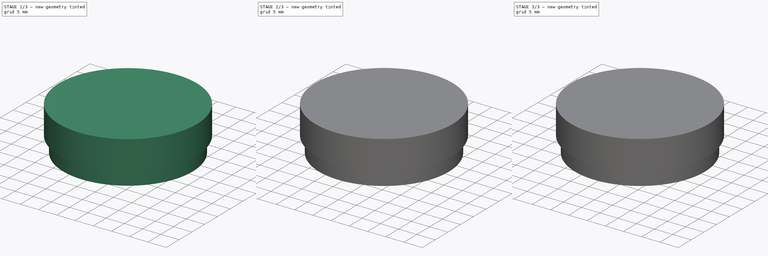
[diagram: build sequence overview — one tinted view per stage of 3, left to right]
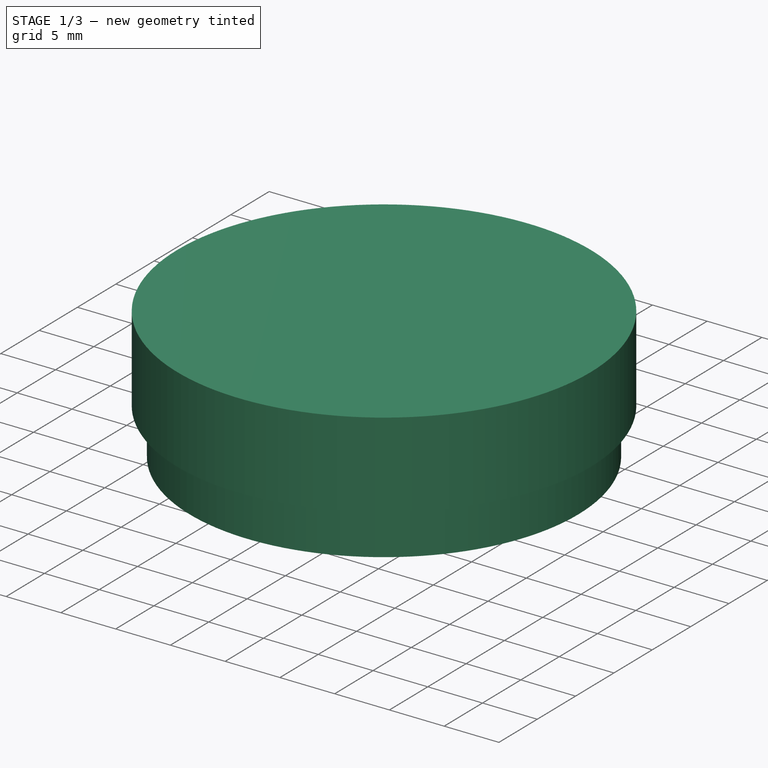
[diagram: stage 1 of 3 — iso view after this stage's code; geometry added in this stage tinted green]
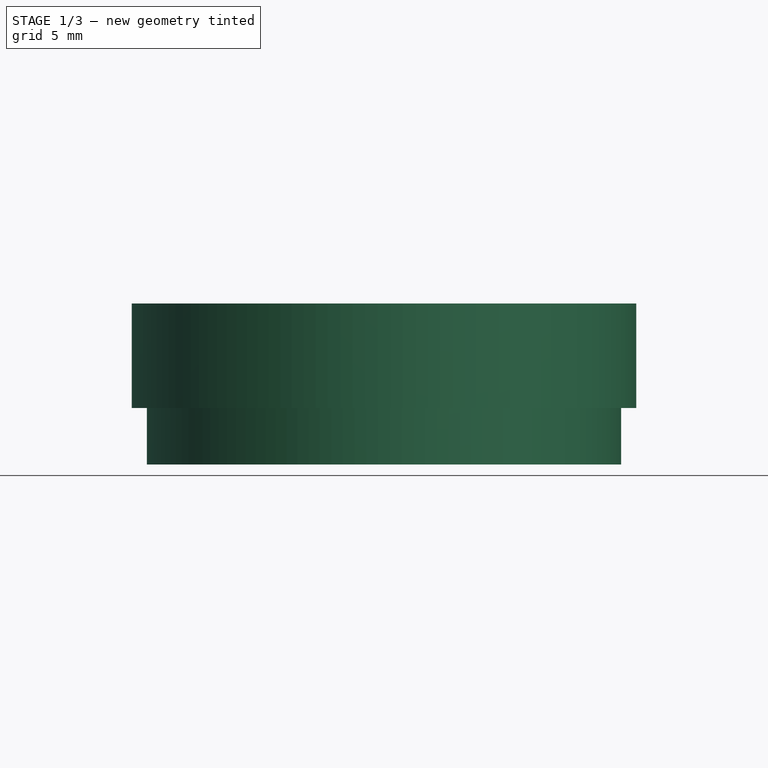
[diagram: stage 1 of 3 — front view after this stage's code; geometry added in this stage tinted green]
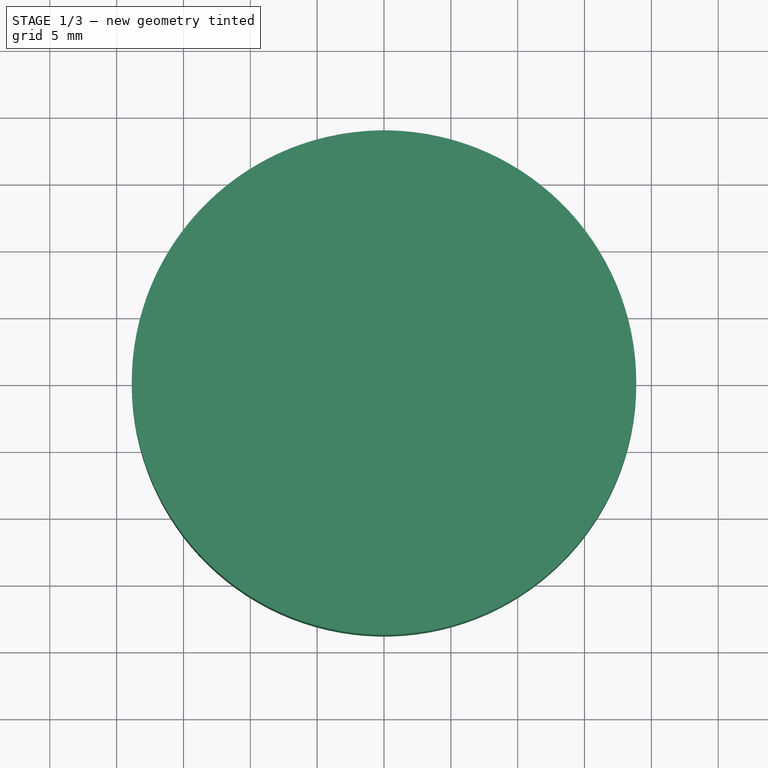
[diagram: stage 1 of 3 — top view after this stage's code; geometry added in this stage tinted green]
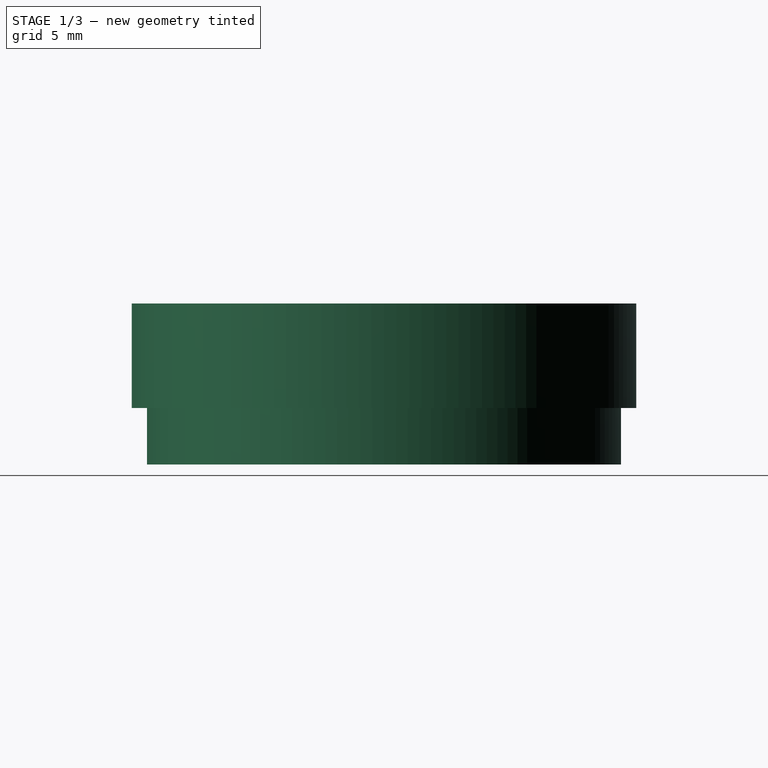
[diagram: stage 1 of 3 — right view after this stage's code; geometry added in this stage tinted green]
FCSTD DOCUMENT  (FreeCAD 0.20R27422 (Git))
Label: Petri dishs
License: All rights reserved
LicenseURL: http://en.wikipedia.org/wiki/All_rights_reserved
objects: TechDraw::DrawViewPart×5, Part::Cylinder×3, Sketcher::SketchObject×3, PartDesign::Revolution×3, PartDesign::Body×3, Part::Cut×2, TechDraw::DrawSVGTemplate×1, TechDraw::DrawPage×1
note: 17 computed .brp shape members not serialized (recipe doc carries the construction recipe); baked Part::Feature solids carry a one-line shape summary decoded from their .brp

FEATURE [Part::Cylinder] Cylinder
  Angle = 360
  AttacherType = Attacher::AttachEngine3D
  FirstAngle = 0
  Height = 9.65
  Placement = pos=(0,0,-0.2) rot=(0,0,1;0rad)
  Radius = 17.5
  SecondAngle = 0
FEATURE [PartDesign::Body] Body  label="Dish lid"
  Group = -> [Sketch,Revolution]
  Origin = -> Origin
  Tip = -> Revolution
FEATURE [TechDraw::DrawSVGTemplate] Template
  Height = 297
  Orientation = 0
  Width = 210
FEATURE [TechDraw::DrawViewPart] View
  CoarseView = false
  Direction = (0.577,-0.577,0.577)
  Focus = 100
  HardHidden = false
  IsoCount = 0
  IsoHidden = false
  IsoVisible = false
  LockPosition = false
  Perspective = false
  Rotation = 0
  ScaleType = 0
  SeamHidden = false
  SeamVisible = true
  SmoothHidden = false
  SmoothVisible = true
  Source = -> [Body]
  X = 35.6888
  XDirection = (0.707,0.707,0)
  Y = 226.182
FEATURE [Sketcher::SketchObject] Sketch001
  FullyConstrained = false
  MapMode = 5
  Placement = pos=(0,0,0) rot=(1,0,0;1.5708rad)
  Support = -> [XZ_Plane001]
  sketch-geometry (6):
    g0: LineSegment StartX=0 StartY=11.1401 StartZ=0 EndX=18.8729 EndY=11.1401 EndZ=0
    g1: LineSegment StartX=18.8729 StartY=11.1401 StartZ=0 EndX=18.8729 EndY=3.32522 EndZ=0
    g2: LineSegment StartX=18.8729 StartY=3.32521 StartZ=0 EndX=18.1729 EndY=3.32521 EndZ=0
    g3: LineSegment StartX=18.1729 StartY=3.32521 StartZ=0 EndX=18.1729 EndY=10.4401 EndZ=0
    g4: LineSegment StartX=18.1729 StartY=10.4401 StartZ=0 EndX=0 EndY=10.4401 EndZ=0
    g5: LineSegment StartX=0 StartY=10.4401 StartZ=0 EndX=0 EndY=11.1401 EndZ=0
  constraints (15):
    c: PointOnObject(g0,g-2)
    c: Horizontal(g0)
    c: Coincident(g1,g0)
    c: Coincident(g2,g1)
    c: Coincident(g3,g2)
    c: Coincident(g4,g3)
    c: PointOnObject(g4,g-2)
    c: Horizontal(g4)
    c: Coincident(g5,g4)
    c: Coincident(g5,g0)
    c: Vertical(g3)
    c: Vertical(g1)
    c: Horizontal(g2)
    c: DistanceX(g2,g2) = 0.7
    c: DistanceY(g5,g5) = 0.7
FEATURE [PartDesign::Revolution] Revolution001
  Angle = 360
  Axis = (0,2e-16,1)
  Base = (0,0,0)
  Placement = pos=(0,0,0) rot=(1,0,0;1.5708rad)
  Profile = -> Sketch001
  ReferenceAxis = -> Sketch001 [V_Axis]
  Reversed = true
FEATURE [PartDesign::Body] Body001  label="Dish lid001"
  Group = -> [Sketch001,Revolution001]
  Origin = -> Origin001
  Placement = pos=(0,0,0) rot=(0,1,0;3.14159rad)
  Tip = -> Revolution001
FEATURE [TechDraw::DrawViewPart] View001
  CoarseView = false
  Direction = (0,0,1)
  Focus = 100
  HardHidden = false
  IsoCount = 0
  IsoHidden = false
  IsoVisible = false
  LockPosition = false
  Perspective = false
  Rotation = 0
  ScaleType = 0
  SeamHidden = false
  SeamVisible = true
  SmoothHidden = false
  SmoothVisible = true
  Source = -> [Cut003]
  X = 89.5975
  XDirection = (0,1,0)
  Y = 166.916
FEATURE [TechDraw::DrawViewPart] View002
  CoarseView = false
  Direction = (-0.577,-0.577,0.577)
  Focus = 100
  HardHidden = false
  IsoCount = 0
  IsoHidden = false
  IsoVisible = false
  LockPosition = false
  Perspective = false
  Rotation = 0
  ScaleType = 0
  SeamHidden = false
  SeamVisible = true
  SmoothHidden = false
  SmoothVisible = true
  Source = -> [Cut003]
  X = 36.0237
  XDirection = (0.707,-0.707,0)
  Y = 169.93
FEATURE [TechDraw::DrawViewPart] View003
  CoarseView = false
  Direction = (-0.577,-0.577,0.577)
  Focus = 100
  HardHidden = false
  IsoCount = 0
  IsoHidden = false
  IsoVisible = false
  LockPosition = false
  Perspective = false
  Rotation = 0
  ScaleType = 0
  SeamHidden = false
  SeamVisible = true
  SmoothHidden = false
  SmoothVisible = true
  Source = -> [Body001]
  X = 89.5975
  XDirection = (0.707,-0.707,0)
  Y = 225.512
FEATURE [Sketcher::SketchObject] Sketch002
  FullyConstrained = false
  MapMode = 5
  Placement = pos=(0,0,0) rot=(1,0,0;1.5708rad)
  Support = -> [XZ_Plane002]
  sketch-geometry (6):
    g0: LineSegment StartX=0 StartY=-0.908115 StartZ=0 EndX=17.7355 EndY=-0.908115 EndZ=0
    g1: LineSegment StartX=17.7355 StartY=-0.908115 StartZ=0 EndX=17.7355 EndY=9.88416 EndZ=0
    g2: LineSegment StartX=17.7355 StartY=9.88416 StartZ=0 EndX=17.1355 EndY=9.88416 EndZ=0
    g3: LineSegment StartX=17.1355 StartY=9.88416 StartZ=0 EndX=17.1355 EndY=0.462332 EndZ=0
    g4: LineSegment StartX=17.1355 StartY=0.462332 StartZ=0 EndX=0 EndY=0.462332 EndZ=0
    g5: LineSegment StartX=0 StartY=-0.908115 StartZ=0 EndX=0 EndY=0.462332 EndZ=0
  constraints (14):
    c: PointOnObject(g0,g-2)
    c: Horizontal(g0)
    c: Coincident(g1,g0)
    c: Vertical(g1)
    c: Coincident(g2,g1)
    c: Coincident(g3,g2)
    c: Vertical(g3)
    c: Coincident(g4,g3)
    c: PointOnObject(g4,g-2)
    c: Horizontal(g4)
    c: Coincident(g5,g0)
    c: Coincident(g5,g4)
    c: Horizontal(g2)
    c: DistanceX(g2,g2) = 0.6
FEATURE [PartDesign::Revolution] Revolution002
  Angle = 360
  Axis = (0,2e-16,1)
  Base = (0,0,0)
  Placement = pos=(0,0,0) rot=(1,0,0;1.5708rad)
  Profile = -> Sketch002
  ReferenceAxis = -> Sketch002 [V_Axis]
  Reversed = true
FEATURE [PartDesign::Body] Body002  label="Dish 35 mm"
  Group = -> [Sketch002,Revolution002]
  Origin = -> Origin002
  Tip = -> Revolution002
FEATURE [TechDraw::DrawViewPart] View004
  CoarseView = false
  Direction = (0.577,-0.577,0.577)
  Focus = 100
  HardHidden = false
  IsoCount = 0
  IsoHidden = false
  IsoVisible = false
  LockPosition = false
  Perspective = false
  Rotation = 0
  ScaleType = 0
  SeamHidden = false
  SeamVisible = true
  SmoothHidden = false
  SmoothVisible = true
  Source = -> [Body002]
  X = 37.0282
  XDirection = (0.707,0.707,0)
  Y = 118.365
FEATURE [TechDraw::DrawPage] Page
  KeepUpdated = true
  NextBalloonIndex = 1
  ProjectionType = 0
  Template = -> Template
  Views = -> [View,View001,View002,View003,View004]
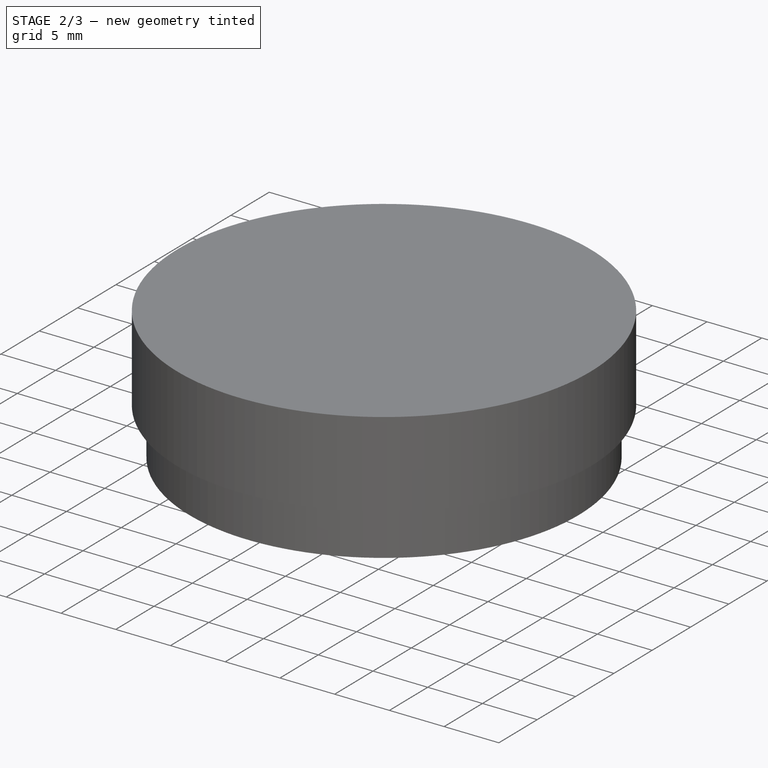
[diagram: stage 2 of 3 — iso view after this stage's code; geometry added in this stage tinted green]
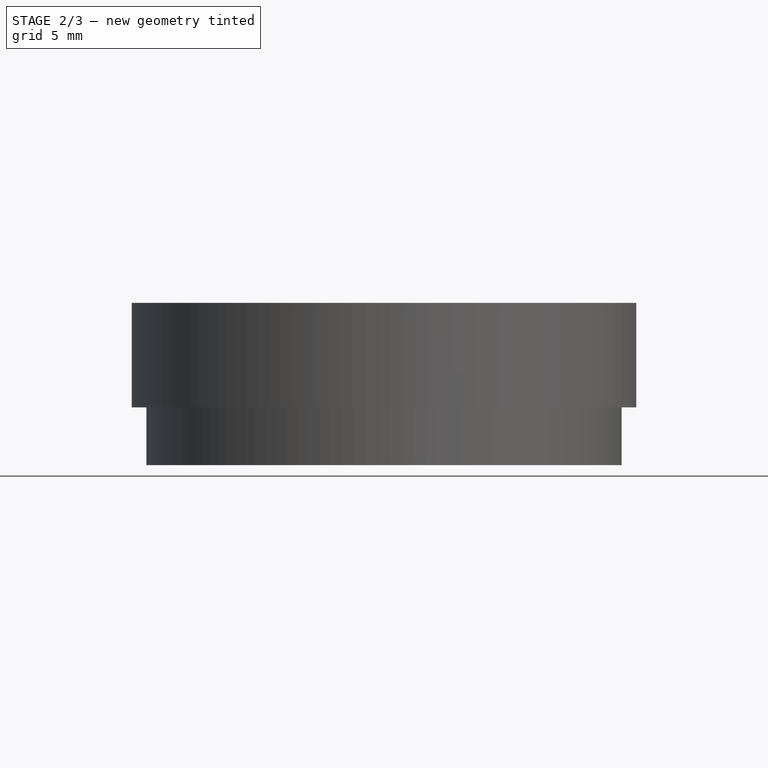
[diagram: stage 2 of 3 — front view after this stage's code; geometry added in this stage tinted green]
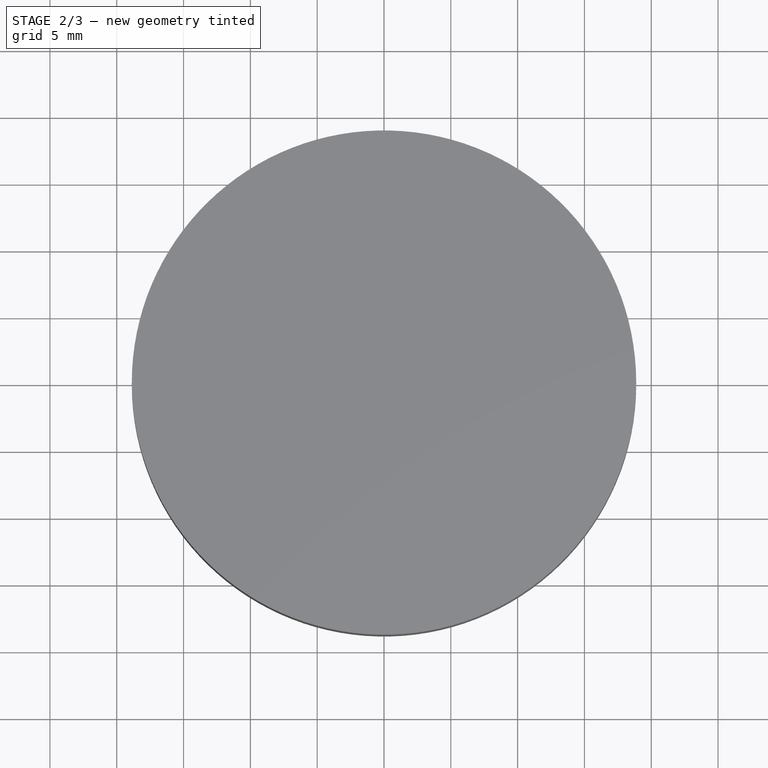
[diagram: stage 2 of 3 — top view after this stage's code; geometry added in this stage tinted green]
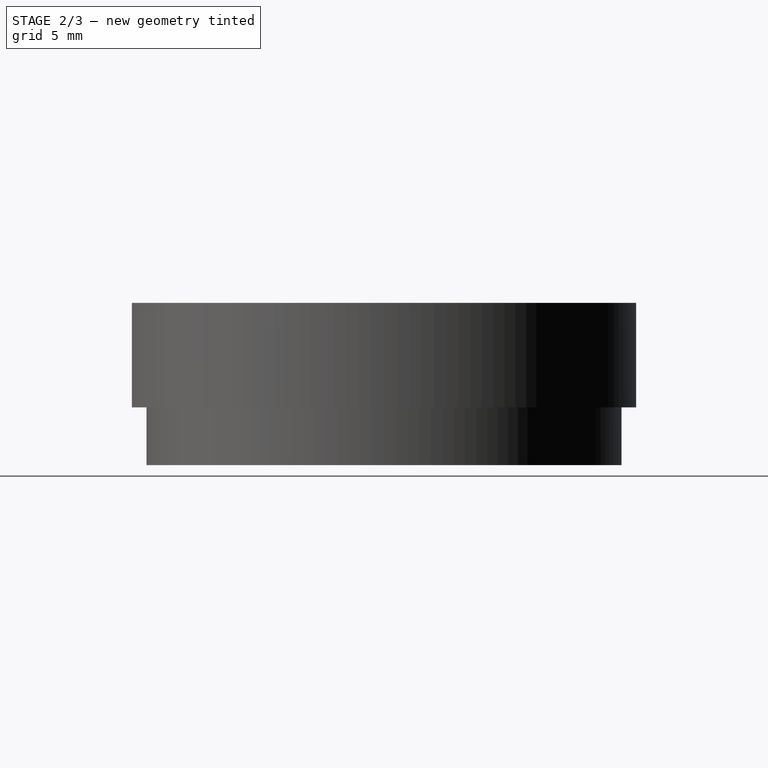
[diagram: stage 2 of 3 — right view after this stage's code; geometry added in this stage tinted green]
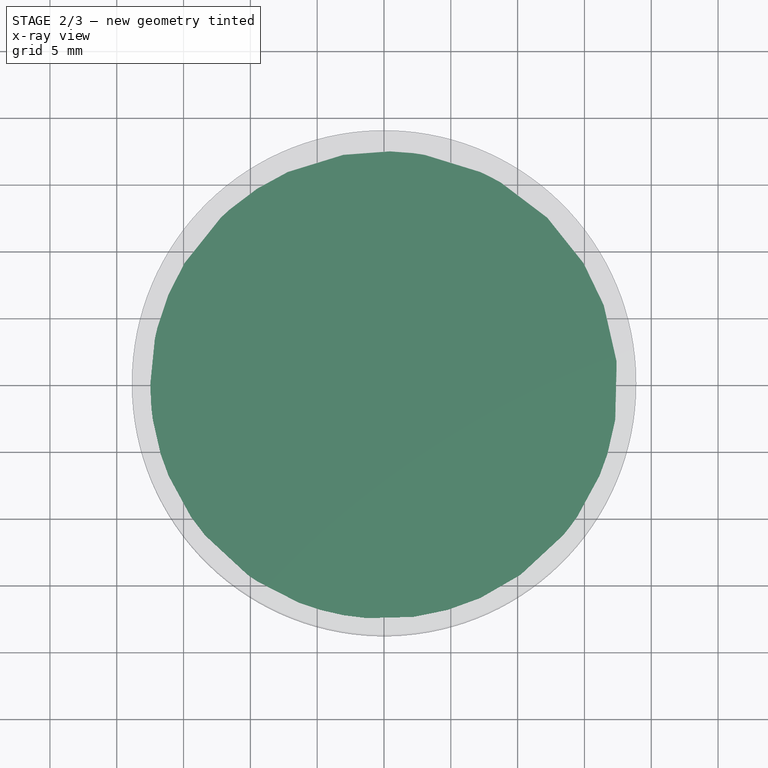
[diagram: stage 2 of 3 — x-ray composite at the top view; earlier geometry ghosted, this stage's added geometry solid]
FEATURE [Part::Cylinder] Cylinder001
  Angle = 360
  AttacherType = Attacher::AttachEngine3D
  FirstAngle = 0
  Height = 10.92
  Placement = pos=(0,0,-1.5) rot=(0,0,1;0rad)
  Radius = 17.78
  SecondAngle = 0
FEATURE [Part::Cut] Cut  label="Petri dish MatTek standart"
  Base = -> Cylinder001
  Placement = pos=(0,0,0.5) rot=(0,0,1;0rad)
  Tool = -> Cylinder
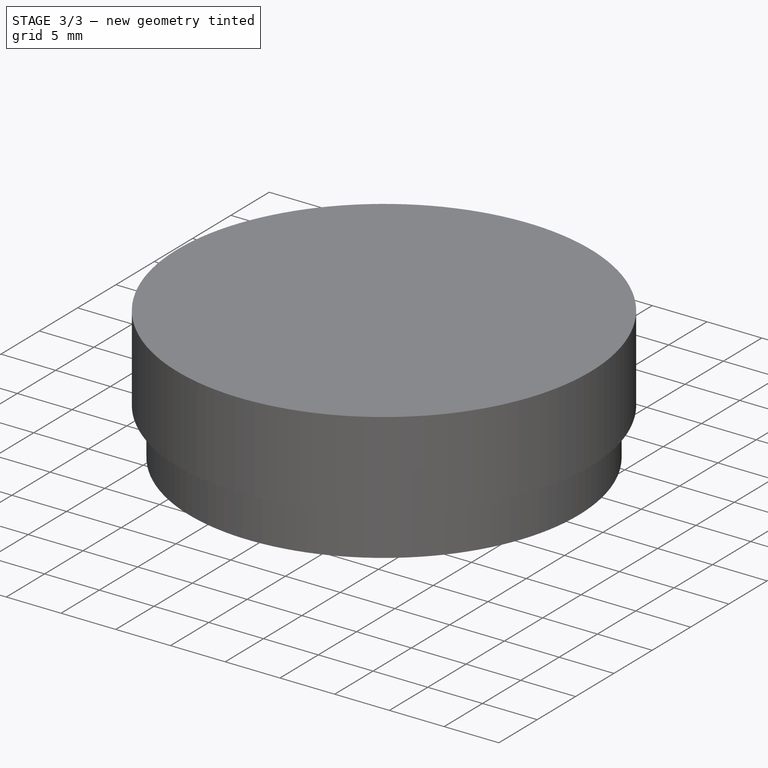
[diagram: stage 3 of 3 — iso view after this stage's code; geometry added in this stage tinted green]
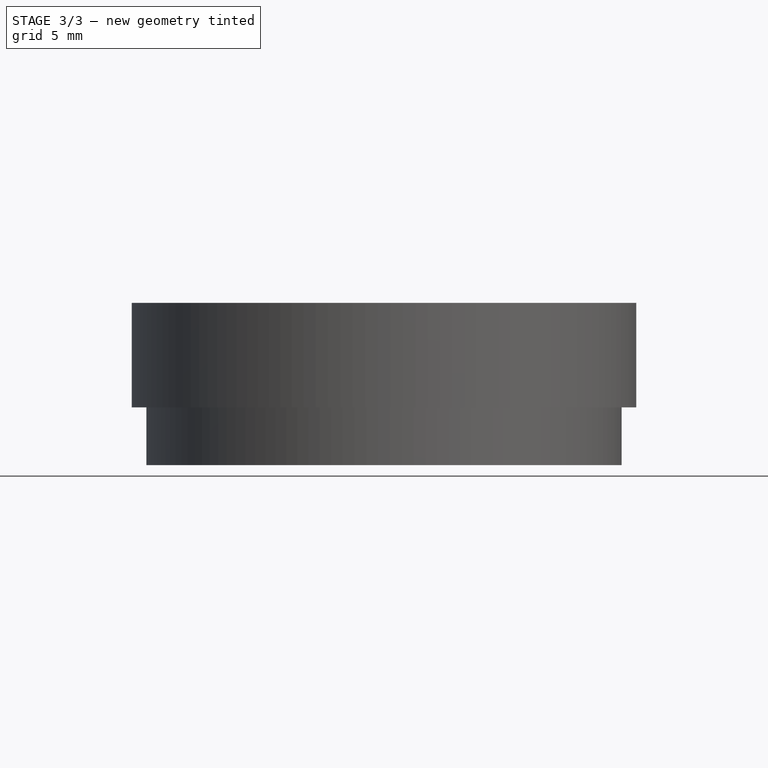
[diagram: stage 3 of 3 — front view after this stage's code; geometry added in this stage tinted green]
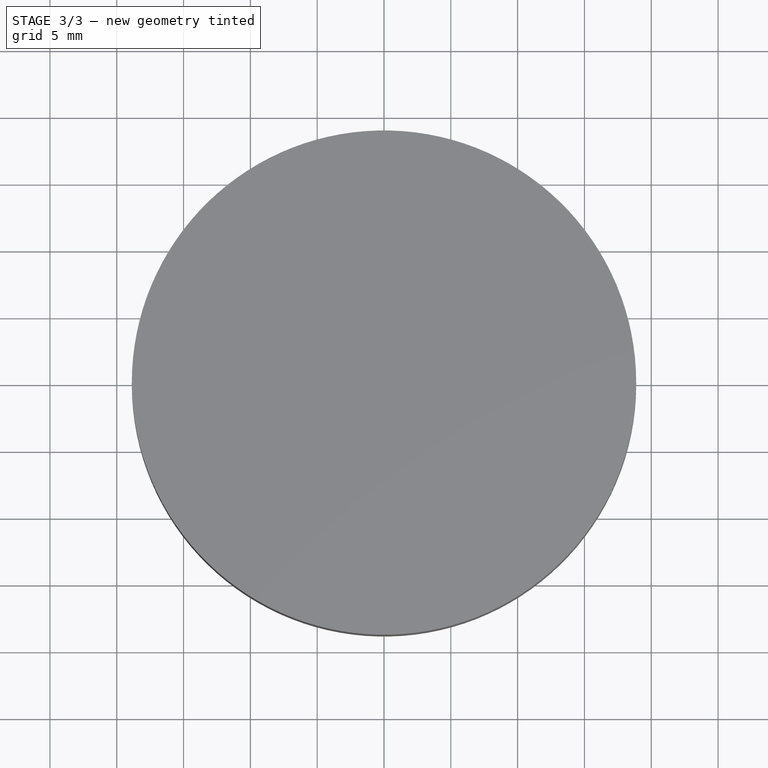
[diagram: stage 3 of 3 — top view after this stage's code; geometry added in this stage tinted green]
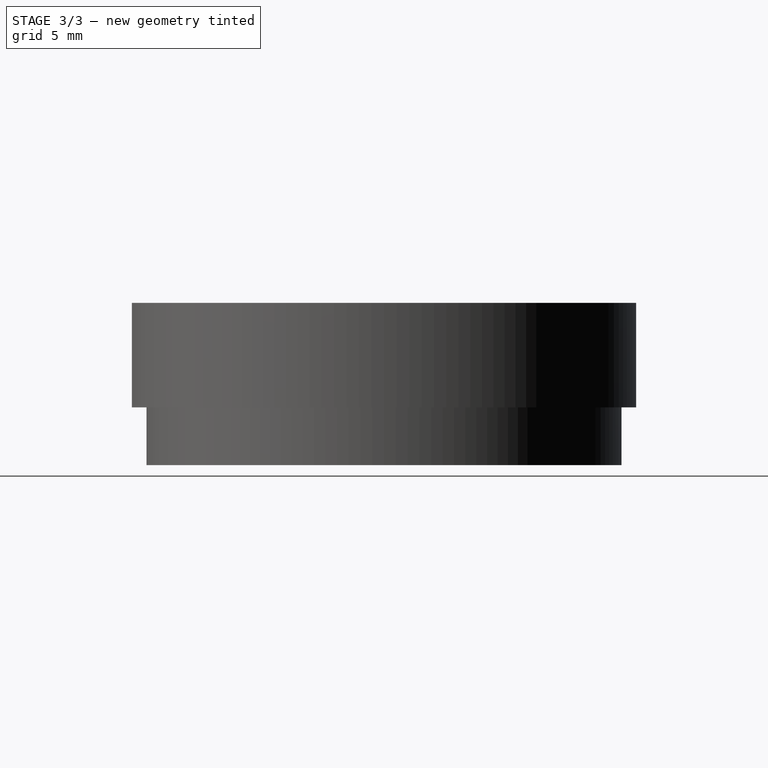
[diagram: stage 3 of 3 — right view after this stage's code; geometry added in this stage tinted green]
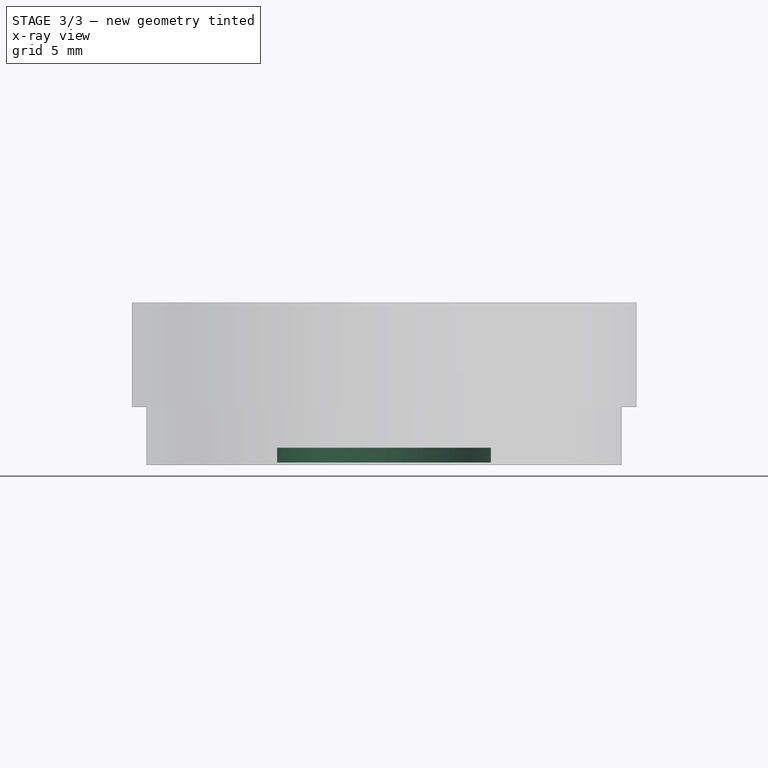
[diagram: stage 3 of 3 — x-ray composite at the front view; earlier geometry ghosted, this stage's added geometry solid]
FEATURE [Part::Cylinder] Cylinder007  label="Glass socket"
  Angle = 360
  AttacherType = Attacher::AttachEngine3D
  FirstAngle = 0
  Height = 10
  Placement = pos=(0,0,-0.82) rot=(0,0,1;0rad)
  Radius = 8
  SecondAngle = 0
FEATURE [Part::Cut] Cut003  label="Dish w glass bottom"
  Base = -> Cut
  Tool = -> Cylinder007
FEATURE [Sketcher::SketchObject] Sketch
  FullyConstrained = false
  MapMode = 5
  Placement = pos=(0,0,0) rot=(1,0,0;1.5708rad)
  Support = -> [XZ_Plane]
  sketch-geometry (6):
    g0: LineSegment StartX=0 StartY=11.1401 StartZ=0 EndX=18.8729 EndY=11.1401 EndZ=0
    g1: LineSegment StartX=18.8729 StartY=11.1401 StartZ=0 EndX=18.8729 EndY=3.32522 EndZ=0
    g2: LineSegment StartX=18.8729 StartY=3.32521 StartZ=0 EndX=18.1729 EndY=3.32521 EndZ=0
    g3: LineSegment StartX=18.1729 StartY=3.32521 StartZ=0 EndX=18.1729 EndY=10.4401 EndZ=0
    g4: LineSegment StartX=18.1729 StartY=10.4401 StartZ=0 EndX=0 EndY=10.4401 EndZ=0
    g5: LineSegment StartX=0 StartY=10.4401 StartZ=0 EndX=0 EndY=11.1401 EndZ=0
  constraints (15):
    c: PointOnObject(g0,g-2)
    c: Horizontal(g0)
    c: Coincident(g1,g0)
    c: Coincident(g2,g1)
    c: Coincident(g3,g2)
    c: Coincident(g4,g3)
    c: PointOnObject(g4,g-2)
    c: Horizontal(g4)
    c: Coincident(g5,g4)
    c: Coincident(g5,g0)
    c: Vertical(g3)
    c: Vertical(g1)
    c: Horizontal(g2)
    c: DistanceX(g2,g2) = 0.7
    c: DistanceY(g5,g5) = 0.7
FEATURE [PartDesign::Revolution] Revolution
  Angle = 360
  Axis = (0,2e-16,1)
  Base = (0,0,0)
  Placement = pos=(0,0,0) rot=(1,0,0;1.5708rad)
  Profile = -> Sketch
  ReferenceAxis = -> Sketch [V_Axis]
  Reversed = true
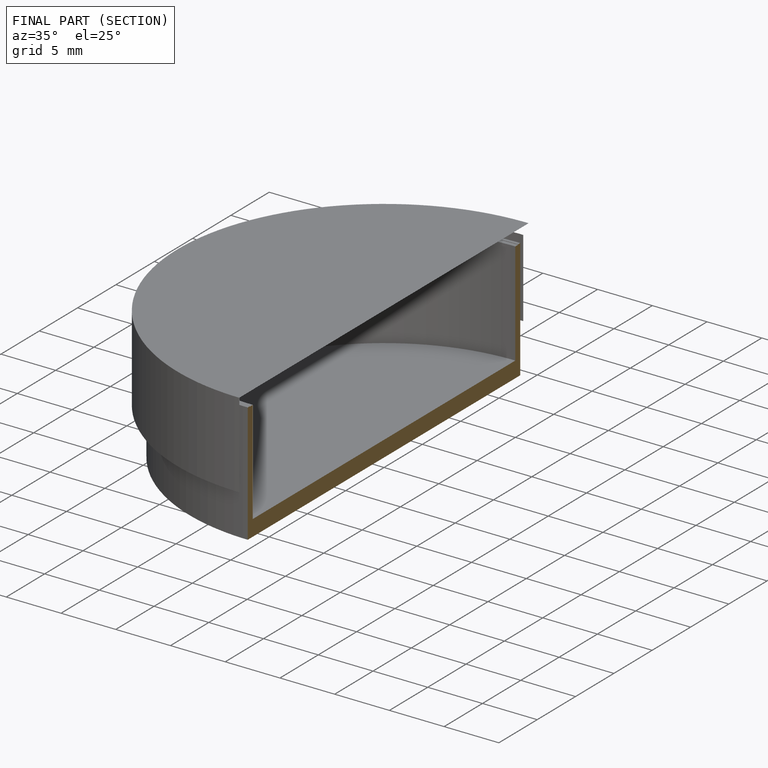
[diagram: finished part — half-section view (interior)]
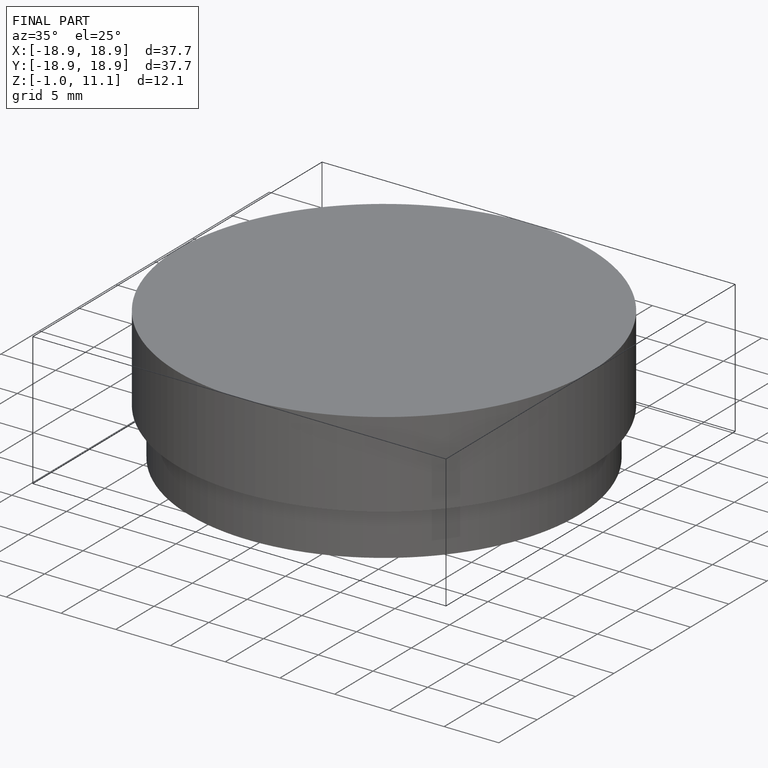
[diagram: finished part — iso view with bounding-box wireframe]
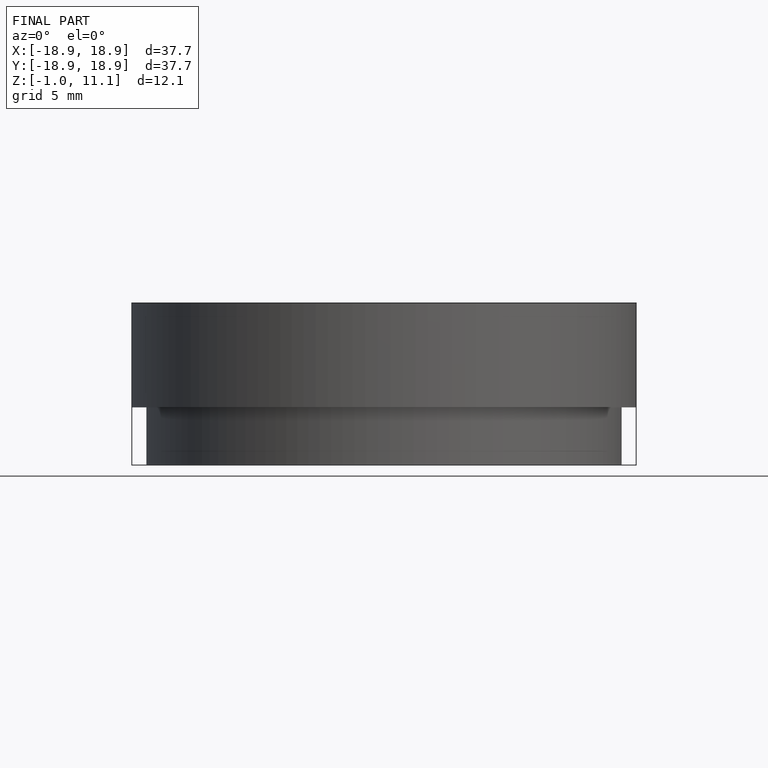
[diagram: finished part — front view with bounding-box wireframe]
